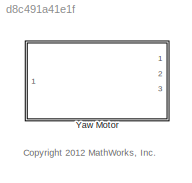
MODEL slx_d8c491a41e1f
KIND library
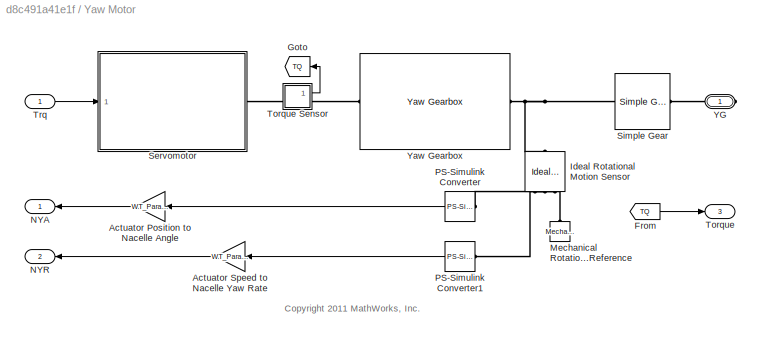
BLOCK [SubSystem] Yaw Motor
  FunctionWithSeparateData = off
  MaskHideContents = off
  MinAlgLoopOccurrences = off
  Opaque = off
  Ports = [1, 3, 0, 0, 0, 0, 1]
  PropExecContextOutsideSubsystem = off
  RTWSystemCode = Auto
  RequestExecContextInheritance = off
BLOCK [Gain] Yaw Motor/Actuator Position to Nacelle Angle
  Gain = WT_Params.Yaw_Actuator.yaw_gear_diameter/WT_Params.Yaw_Actuator.yaw_ring_diameter
  OutDataTypeStr = Inherit: Inherit via internal rule
  ParamDataTypeStr = Inherit: Inherit via internal rule
  SaturateOnIntegerOverflow = off
BLOCK [Gain] Yaw Motor/Actuator Speed to Nacelle Yaw Rate
  Gain = WT_Params.Yaw_Actuator.yaw_gear_diameter/WT_Params.Yaw_Actuator.yaw_ring_diameter
  OutDataTypeStr = Inherit: Inherit via internal rule
  ParamDataTypeStr = Inherit: Inherit via internal rule
  SaturateOnIntegerOverflow = off
BLOCK [From] Yaw Motor/From
  CloseFcn = tagdialog Close
  GotoTag = TQ
BLOCK [Goto] Yaw Motor/Goto
  GotoTag = TQ
BLOCK [Reference] Yaw Motor/Ideal Rotational Motion Sensor  REF=fl_lib/Mechanical/Mechanical Sensors/Ideal Rotational
Motion Sensor
  ClassName = angular_velocity
  ComponentPath = foundation.mechanical.sensors.angular_velocity
  ComponentVariantNames = angular_velocity
  ComponentVariants = foundation.mechanical.sensors.angular_velocity
  LocalVarDescs = |w|t|phi
  LocalVarLogging = [0 0 0]
  LocalVarNames = |w|t|phi
  Ports = [0, 0, 0, 0, 0, 1, 3]
  SchemaVersion = 1
  SourceBlock = fl_lib/Mechanical/Mechanical Sensors/Ideal Rotational\nMotion Sensor
  SourceFile = foundation.mechanical.sensors.angular_velocity
  SourceType = Ideal Rotational\nMotion Sensor
  offset = 0
  offset_unit = rad
  phi_Log = off
  t_Log = off
  w_Log = off
BLOCK [Reference] Yaw Motor/Mechanical Rotational Reference  REF=fl_lib/Mechanical/Rotational Elements/Mechanical
Rotational Reference
  ClassName = reference
  ComponentPath = foundation.mechanical.rotational.reference
  ComponentVariantNames = reference
  ComponentVariants = foundation.mechanical.rotational.reference
  LocalVarDescs = |t
  LocalVarLogging = 0
  LocalVarNames = |t
  Ports = [0, 0, 0, 0, 0, 1]
  SchemaVersion = 1
  SourceBlock = fl_lib/Mechanical/Rotational Elements/Mechanical\nRotational Reference
  SourceFile = foundation.mechanical.rotational.reference
  SourceType = Mechanical\nRotational Reference
  t_Log = off
BLOCK [Outport] Yaw Motor/NYA
  IconDisplay = Port number
BLOCK [Outport] Yaw Motor/NYR
  IconDisplay = Port number
  Port = 2
BLOCK [Reference] Yaw Motor/PS-Simulink Converter  REF=nesl_utility/PS-Simulink
Converter
  AffineConversion = off
  Frequencies = []
  LeftPortType = input
  PhysicalDomain = network_engine_domain
  Ports = [0, 1, 0, 0, 0, 1]
  PseudoPeriodic = off
  RightPortType = output
  SourceBlock = nesl_utility/PS-Simulink\nConverter
  SourceType = PS-Simulink\nConverter
  SubClassName = ps_output
  Unit = deg
BLOCK [Reference] Yaw Motor/PS-Simulink Converter1  REF=nesl_utility/PS-Simulink
Converter
  AffineConversion = off
  Frequencies = []
  LeftPortType = input
  PhysicalDomain = network_engine_domain
  Ports = [0, 1, 0, 0, 0, 1]
  PseudoPeriodic = off
  RightPortType = output
  SourceBlock = nesl_utility/PS-Simulink\nConverter
  SourceType = PS-Simulink\nConverter
  SubClassName = ps_output
  Unit = deg/s
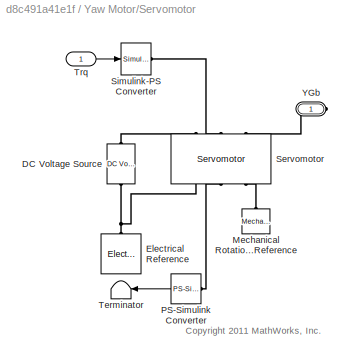
BLOCK [SubSystem] Yaw Motor/Servomotor
  FunctionWithSeparateData = off
  MaskHideContents = off
  MinAlgLoopOccurrences = off
  Opaque = off
  Ports = [1, 0, 0, 0, 0, 0, 1]
  PropExecContextOutsideSubsystem = off
  RTWSystemCode = Auto
  RequestExecContextInheritance = off
  ShowPortLabels = FromPortBlockName
BLOCK [Reference] Yaw Motor/Servomotor/DC Voltage Source  REF=fl_lib/Electrical/Electrical Sources/DC Voltage Source
  ClassName = dc_voltage_source
  ComponentPath = foundation.electrical.sources.dc_voltage
  ComponentVariantNames = dc_voltage
  ComponentVariants = foundation.electrical.sources.dc_voltage
  LocalVarDescs = |Current (A)|Voltage (V)|Power (W)
  LocalVarLogging = [0 0 0]
  LocalVarNames = |current|voltage|power
  Ports = [0, 0, 0, 0, 0, 1, 1]
  SchemaVersion = 1
  SourceBlock = fl_lib/Electrical/Electrical Sources/DC Voltage Source
  SourceFile = foundation.electrical.sources.dc_voltage
  SourceType = DC Voltage Source
  i_Log = off
  v0 = WT_Params.Yaw_Actuator.Motor.voltage
  v0_unit = V
  v_Log = off
BLOCK [Reference] Yaw Motor/Servomotor/Electrical Reference  REF=fl_lib/Electrical/Electrical Elements/Electrical Reference
  ClassName = reference_electrical
  ComponentPath = foundation.electrical.elements.reference
  ComponentVariantNames = reference
  ComponentVariants = foundation.electrical.elements.reference
  LocalVarDescs = |i
  LocalVarLogging = []
  LocalVarNames = |i
  Ports = [0, 0, 0, 0, 0, 1]
  SchemaVersion = 1
  SourceBlock = fl_lib/Electrical/Electrical Elements/Electrical Reference
  SourceFile = foundation.electrical.elements.reference
  SourceType = Electrical Reference
  i_Log = off
BLOCK [Reference] Yaw Motor/Servomotor/Mechanical Rotational Reference  REF=fl_lib/Mechanical/Rotational Elements/Mechanical
Rotational Reference
  ClassName = reference_rot
  ComponentPath = foundation.mechanical.rotational.reference
  ComponentVariantNames = reference
  ComponentVariants = foundation.mechanical.rotational.reference
  LocalVarDescs = |t
  LocalVarLogging = []
  LocalVarNames = |t
  Ports = [0, 0, 0, 0, 0, 1]
  SchemaVersion = 1
  SourceBlock = fl_lib/Mechanical/Rotational Elements/Mechanical\nRotational Reference
  SourceFile = foundation.mechanical.rotational.reference
  SourceType = Mechanical\nRotational Reference
  t_Log = off
BLOCK [Reference] Yaw Motor/Servomotor/PS-Simulink Converter  REF=nesl_utility/PS-Simulink
Converter
  AffineConversion = off
  Frequencies = []
  LeftPortType = input
  PhysicalDomain = network_engine_domain
  Ports = [0, 1, 0, 0, 0, 1]
  PseudoPeriodic = off
  RightPortType = output
  SourceBlock = nesl_utility/PS-Simulink\nConverter
  SourceType = PS-Simulink\nConverter
  SubClassName = ps_output
  Unit = deg/s
BLOCK [Reference] Yaw Motor/Servomotor/Servomotor  REF=elec_lib/Actuators & Drivers/Rotational Actuators/Servomotor
  ClassName = controlled_servomotor
  ComponentPath = elec.actuators.rotational.controlled_servomotor
  ComponentVariantNames = No thermal port, Show thermal port
  ComponentVariants = elec.actuators.rotational.controlled_servomotor, elec.actuators.rotational.controlled_servomotor_thermal
  J = 0
  J_unit = kg*m^2
  LocalVarLogging = []
  Pbase = 0
  Pbase_unit = W
  Ports = [0, 0, 0, 0, 0, 3, 3]
  Res = WT_Params.Yaw_Actuator.Motor.resistance
  Res_unit = Ohm
  SchemaVersion = 1
  SourceBlock = elec_lib/Actuators & Drivers/Rotational Actuators/Servomotor
  SourceFile = elec.actuators.rotational.controlled_servomotor
  SourceType = Servomotor
  T_eff = 0.08
  T_eff_unit = N*m
  T_t = WT_Params.Yaw_Actuator.Motor.max_torque_vector
  T_t_unit = 1
  Tc = WT_Params.Yaw_Actuator.Motor.control_time_constant
  Tc_unit = s
  Tmeas = 25
  Tmeas_unit = C
  alpha = 0.00393
  alpha_unit = 1/K
  eff = 100
  eff_unit = 1
  initial_temperature = 25
  initial_temperature_unit = C
  lam = WT_Params.Yaw_Actuator.Motor.damping
  lam_unit = N*m/(rad/s)
  speed0 = 0
  speed0_unit = rpm
  thermal_mass = 100
  thermal_mass_unit = J/K
  w_eff = 3.75e+03
  w_eff_unit = rpm
  w_t = WT_Params.Yaw_Actuator.Motor.max_speed_vector
  w_t_unit = 1
BLOCK [Reference] Yaw Motor/Servomotor/Simulink-PS Converter  REF=nesl_utility/Simulink-PS
Converter
  AffineConversion = off
  Frequencies = []
  InputFilterTimeConstant = .001
  InputFiltering = off
  LeftPortType = input
  NoiseDistribution = none
  NoiseParameters = []
  PhysicalDomain = network_engine_domain
  Ports = [1, 0, 0, 0, 0, 0, 1]
  PseudoPeriodic = off
  RightPortType = output
  SimscapeFilterOrder = 1
  SourceBlock = nesl_utility/Simulink-PS\nConverter
  SourceType = Simulink-PS\nConverter
  SubClassName = ps_input
  UdotUserProvided = 0
  Unit = 1
BLOCK [Terminator] Yaw Motor/Servomotor/Terminator
BLOCK [Inport] Yaw Motor/Servomotor/Trq
  IconDisplay = Port number
BLOCK [PMIOPort] Yaw Motor/Servomotor/YGb
  Port = 1
  Side = Right
BLOCK [Reference] Yaw Motor/Simple Gear  REF=sdl_lib/Gears/Simple Gear
  ClassName = simple_gear
  ComponentPath = sdl.gears.simple_gear
  ComponentVariantNames = simple_gear
  ComponentVariants = sdl.gears.simple_gear
  LocalVarLogging = []
  Ports = [0, 0, 0, 0, 0, 1, 1]
  SchemaVersion = 1
  SourceBlock = sdl_lib/Gears/Simple Gear
  SourceFile = sdl.gears.simple_gear
  SourceType = Simple Gear
  T_noload = 0.1
  T_noload_unit = N*m
  T_nom = 5
  T_nom_unit = N*m
  efficiency = 0.8
  efficiency_nom = 0.8
  efficiency_nom_unit = 1
  efficiency_unit = 1
  friction_model = 1
  friction_model_unit = 1
  mu_visc = [ 0 0 ]
  mu_visc_unit = N*m/(rad/s)
  ratio = 1/(WT_Params.Yaw_Actuator.yaw_gear_diameter/WT_Params.Yaw_Actuator.yaw_ring_diameter)
  ratio_unit = 1
  rotation_direction = 2
  rotation_direction_unit = 1
  w_thr = 0.01
  w_thr_unit = rad/s
BLOCK [Outport] Yaw Motor/Torque
  IconDisplay = Port number
  Port = 3
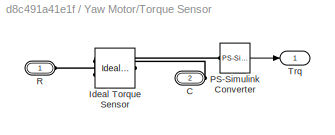
BLOCK [SubSystem] Yaw Motor/Torque Sensor
  FunctionWithSeparateData = off
  MaskHideContents = off
  MinAlgLoopOccurrences = off
  Opaque = off
  Ports = [0, 1, 0, 0, 0, 1, 1]
  PropExecContextOutsideSubsystem = off
  RTWSystemCode = Auto
  RequestExecContextInheritance = off
BLOCK [PMIOPort] Yaw Motor/Torque Sensor/C
  Port = 2
  Side = Right
BLOCK [Reference] Yaw Motor/Torque Sensor/Ideal Torque Sensor  REF=fl_lib/Mechanical/Mechanical Sensors/Ideal Torque Sensor
  ClassName = torque
  ComponentPath = foundation.mechanical.sensors.torque
  ComponentVariantNames = torque
  ComponentVariants = foundation.mechanical.sensors.torque
  LocalVarDescs = |w|t
  LocalVarLogging = [0 0]
  LocalVarNames = |w|t
  Ports = [0, 0, 0, 0, 0, 1, 2]
  SchemaVersion = 1
  SourceBlock = fl_lib/Mechanical/Mechanical Sensors/Ideal Torque Sensor
  SourceFile = foundation.mechanical.sensors.torque
  SourceType = Ideal Torque Sensor
  t_Log = off
  w_Log = off
BLOCK [Reference] Yaw Motor/Torque Sensor/PS-Simulink Converter  REF=nesl_utility/PS-Simulink
Converter
  AffineConversion = off
  Frequencies = []
  LeftPortType = input
  PhysicalDomain = network_engine_domain
  Ports = [0, 1, 0, 0, 0, 1]
  PseudoPeriodic = off
  RightPortType = output
  SourceBlock = nesl_utility/PS-Simulink\nConverter
  SourceType = PS-Simulink\nConverter
  SubClassName = ps_output
  Unit = 1
BLOCK [PMIOPort] Yaw Motor/Torque Sensor/R
  Port = 1
  Side = Left
BLOCK [Outport] Yaw Motor/Torque Sensor/Trq
  IconDisplay = Port number
BLOCK [Inport] Yaw Motor/Trq
  IconDisplay = Port number
BLOCK [PMIOPort] Yaw Motor/YG
  Port = 1
  Side = Right
BLOCK [Reference] Yaw Motor/Yaw Gearbox  REF=Yaw_Gearbox_Lib/Yaw Gearbox
  FunctionWithSeparateData = off
  GeneratePreprocessorConditionals = off
  Ports = [0, 0, 0, 0, 0, 1, 1]
  ShowPortLabels = FromPortIcon
  SourceBlock = Yaw_Gearbox_Lib/Yaw Gearbox
  SystemSampleTime = -1
ANNOTATION (root): <copyright redacted>
ANNOTATION Yaw Motor: <copyright redacted>
ANNOTATION Yaw Motor/Servomotor: <copyright redacted>
LINE Yaw Motor/Actuator Position to Nacelle Angle:1 -> Yaw Motor/NYA:1
LINE Yaw Motor/Actuator Speed to Nacelle Yaw Rate:1 -> Yaw Motor/NYR:1
LINE Yaw Motor/From:1 -> Yaw Motor/Torque:1
LINE Yaw Motor/PS-Simulink Converter1:1 -> Yaw Motor/Actuator Speed to Nacelle Yaw Rate:1
LINE Yaw Motor/PS-Simulink Converter:1 -> Yaw Motor/Actuator Position to Nacelle Angle:1
LINE Yaw Motor/Servomotor/PS-Simulink Converter:1 -> Yaw Motor/Servomotor/Terminator:1
LINE Yaw Motor/Servomotor/Trq:1 -> Yaw Motor/Servomotor/Simulink-PS Converter:1
LINE Yaw Motor/Torque Sensor/PS-Simulink Converter:1 -> Yaw Motor/Torque Sensor/Trq:1
LINE Yaw Motor/Torque Sensor:1 -> Yaw Motor/Goto:1
LINE Yaw Motor/Trq:1 -> Yaw Motor/Servomotor:1
PNET net1: Yaw Motor/Ideal Rotational Motion Sensor:LConn1 -- Yaw Motor/Simple Gear:LConn1 -- Yaw Motor/Yaw Gearbox:RConn1
PLINE Yaw Motor/Ideal Rotational Motion Sensor:RConn1 -- Yaw Motor/Mechanical Rotational Reference:LConn1
PLINE Yaw Motor/Ideal Rotational Motion Sensor:RConn2 -- Yaw Motor/PS-Simulink Converter1:LConn1
PLINE Yaw Motor/Ideal Rotational Motion Sensor:RConn3 -- Yaw Motor/PS-Simulink Converter:LConn1
PLINE Yaw Motor/Servomotor/DC Voltage Source:LConn1 -- Yaw Motor/Servomotor/Servomotor:LConn1
PNET net2: Yaw Motor/Servomotor/DC Voltage Source:RConn1 -- Yaw Motor/Servomotor/Electrical Reference:LConn1 -- Yaw Motor/Servomotor/Servomotor:RConn1
PLINE Yaw Motor/Servomotor/Mechanical Rotational Reference:LConn1 -- Yaw Motor/Servomotor/Servomotor:RConn3
PLINE Yaw Motor/Servomotor/PS-Simulink Converter:LConn1 -- Yaw Motor/Servomotor/Servomotor:RConn2
PLINE Yaw Motor/Servomotor/Servomotor:LConn2 -- Yaw Motor/Servomotor/Simulink-PS Converter:RConn1
PLINE Yaw Motor/Servomotor/Servomotor:LConn3 -- Yaw Motor/Servomotor/YGb:RConn1
PLINE Yaw Motor/Servomotor:RConn1 -- Yaw Motor/Torque Sensor:LConn1
PLINE Yaw Motor/Simple Gear:RConn1 -- Yaw Motor/YG:RConn1
PLINE Yaw Motor/Torque Sensor/C:RConn1 -- Yaw Motor/Torque Sensor/Ideal Torque Sensor:RConn1
PLINE Yaw Motor/Torque Sensor/Ideal Torque Sensor:LConn1 -- Yaw Motor/Torque Sensor/R:RConn1
PLINE Yaw Motor/Torque Sensor/Ideal Torque Sensor:RConn2 -- Yaw Motor/Torque Sensor/PS-Simulink Converter:LConn1
PLINE Yaw Motor/Torque Sensor:RConn1 -- Yaw Motor/Yaw Gearbox:LConn1
note: PNET lines group multi-terminal physical nets as a canonical sorted terminal list (undirected conserving connections); 2-terminal nets keep the pairwise PLINE form
